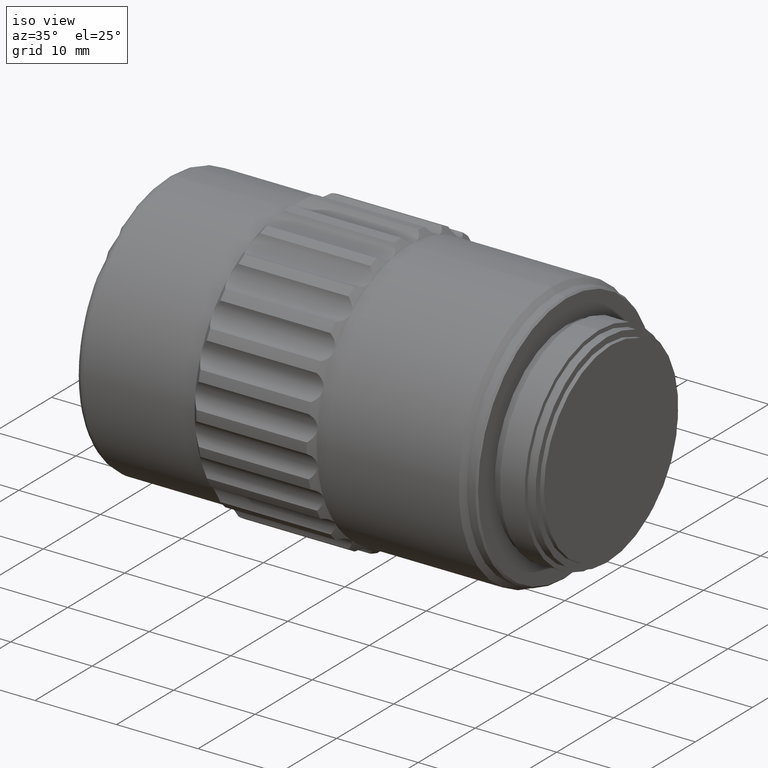
[diagram: clean part render]
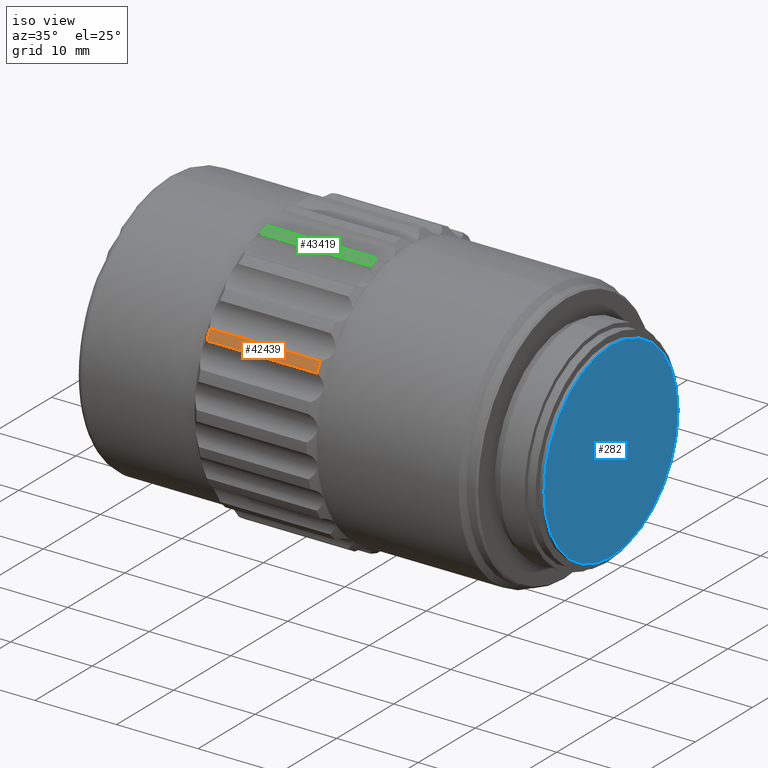
[diagram: same view with three faces highlighted in distinct colors, each labeled with its STEP entity id]
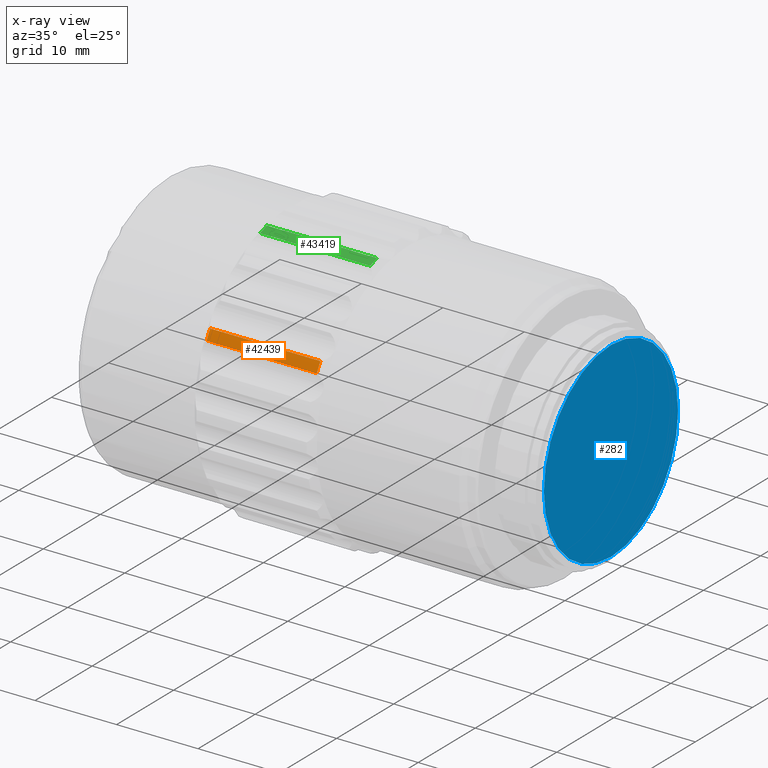
[diagram: x-ray of the same camera — body ghosted, the three highlighted faces saturated]
A machine part, iso view with three faces highlighted in distinct colors.
The next image is the same camera in x-ray (body ghosted, the three faces saturated) — at least one of them is partly hidden behind the body in this view.
Their STEP definitions:

[orange] entity #42439 — the highlighted cylindrical surface (partial cylindrical patch) has radius 17 mm, axis along (-1, -0, -0).
#819 = ORIENTED_EDGE ( 'NONE', *, *, #8790, .F. ) ;
#1533 = DIRECTION ( 'NONE',  ( 0.000000000000000000, 0.000000000000000000, -1.000000000000000000 ) ) ;
#1699 = AXIS2_PLACEMENT_3D ( 'NONE', #9377, #2516, #7076 ) ;
#2087 = VECTOR ( 'NONE', #20817, 1000.000000000000000 ) ;
#2516 = DIRECTION ( 'NONE',  ( -1.000000000000000000, -0.000000000000000000, -0.000000000000000000 ) ) ;
#2945 = EDGE_CURVE ( 'NONE', #27799, #29002, #10831, .T. ) ;
#4970 = CARTESIAN_POINT ( 'NONE',  ( 16.69999999999998508, 0.000000000000000000, 0.000000000000000000 ) ) ;
#7076 = DIRECTION ( 'NONE',  ( 0.000000000000000000, 0.000000000000000000, 1.000000000000000000 ) ) ;
#8182 = DIRECTION ( 'NONE',  ( 1.000000000000000000, 0.000000000000000000, 0.000000000000000000 ) ) ;
#8790 = EDGE_CURVE ( 'NONE', #27799, #21232, #14422, .T. ) ;
#9377 = CARTESIAN_POINT ( 'NONE',  ( 30.20000000000000284, 0.000000000000000000, 0.000000000000000000 ) ) ;
#9441 = EDGE_CURVE ( 'NONE', #42272, #29002, #44749, .T. ) ;
#10063 = DIRECTION ( 'NONE',  ( -1.000000000000000000, -0.000000000000000000, -0.000000000000000000 ) ) ;
#10515 = CARTESIAN_POINT ( 'NONE',  ( 0.000000000000000000, 0.000000000000000000, 0.000000000000000000 ) ) ;
#10831 = CIRCLE ( 'NONE', #11553, 17.00000000000000000 ) ;
#11553 = AXIS2_PLACEMENT_3D ( 'NONE', #4970, #8182, #1533 ) ;
#12453 = EDGE_LOOP ( 'NONE', ( #26509, #819, #12920, #17789 ) ) ;
#12920 = ORIENTED_EDGE ( 'NONE', *, *, #2945, .T. ) ;
#14422 = LINE ( 'NONE', #28344, #2087 ) ;
#16915 = CYLINDRICAL_SURFACE ( 'NONE', #41790, 17.00000000000000000 ) ;
#17789 = ORIENTED_EDGE ( 'NONE', *, *, #9441, .F. ) ;
#20768 = CARTESIAN_POINT ( 'NONE',  ( 16.69999999999998508, -14.58408649700090542, 8.735240182616383464 ) ) ;
#20817 = DIRECTION ( 'NONE',  ( 1.000000000000000000, 0.000000000000000000, 0.000000000000000000 ) ) ;
#21232 = VERTEX_POINT ( 'NONE', #21358 ) ;
#21358 = CARTESIAN_POINT ( 'NONE',  ( 30.20000000000000284, -14.58408649700090542, 8.735240182616383464 ) ) ;
#26509 = ORIENTED_EDGE ( 'NONE', *, *, #41818, .T. ) ;
#27178 = DIRECTION ( 'NONE',  ( -1.000000000000000000, -0.000000000000000000, -0.000000000000000000 ) ) ;
#27799 = VERTEX_POINT ( 'NONE', #20768 ) ;
#28344 = CARTESIAN_POINT ( 'NONE',  ( 23.44999999999999574, -14.58408649700090542, 8.735240182616383464 ) ) ;
#29002 = VERTEX_POINT ( 'NONE', #37753 ) ;
#34265 = DIRECTION ( 'NONE',  ( 0.000000000000000000, 0.000000000000000000, 1.000000000000000000 ) ) ;
#34488 = CARTESIAN_POINT ( 'NONE',  ( 23.44999999999999574, -15.18995154753260834, 7.633175746935989991 ) ) ;
#37753 = CARTESIAN_POINT ( 'NONE',  ( 16.69999999999998508, -15.18995154753260657, 7.633175746935989103 ) ) ;
#40951 = CARTESIAN_POINT ( 'NONE',  ( 30.20000000000000284, -15.18995154753260834, 7.633175746935989991 ) ) ;
#41120 = FACE_OUTER_BOUND ( 'NONE', #12453, .T. ) ;
#41790 = AXIS2_PLACEMENT_3D ( 'NONE', #10515, #10063, #34265 ) ;
#41818 = EDGE_CURVE ( 'NONE', #42272, #21232, #43250, .T. ) ;
#42272 = VERTEX_POINT ( 'NONE', #40951 ) ;
#42439 = ADVANCED_FACE ( 'NONE', ( #41120 ), #16915, .T. ) ;
#43250 = CIRCLE ( 'NONE', #1699, 17.00000000000000000 ) ;
#44749 = LINE ( 'NONE', #34488, #45108 ) ;
#45108 = VECTOR ( 'NONE', #27178, 1000.000000000000000 ) ;

[blue] entity #282 — the highlighted planar face has unit normal (-1, 0, -0).
#282 = ADVANCED_FACE ( 'NONE', ( #4996 ), #19357, .F. ) ;
#1172 = VERTEX_POINT ( 'NONE', #35107 ) ;
#1308 = DIRECTION ( 'NONE',  ( -1.000000000000000000, -0.000000000000000000, -0.000000000000000000 ) ) ;
#2736 = EDGE_CURVE ( 'NONE', #15842, #1172, #7181, .T. ) ;
#2786 = EDGE_CURVE ( 'NONE', #1172, #15842, #5708, .T. ) ;
#4854 = EDGE_LOOP ( 'NONE', ( #16316, #11548 ) ) ;
#4996 = FACE_OUTER_BOUND ( 'NONE', #4854, .T. ) ;
#5708 = CIRCLE ( 'NONE', #37801, 11.75000000000000000 ) ;
#7181 = CIRCLE ( 'NONE', #21749, 11.75000000000000000 ) ;
#7500 = CARTESIAN_POINT ( 'NONE',  ( 55.65000000000000568, 0.000000000000000000, 0.000000000000000000 ) ) ;
#7729 = CARTESIAN_POINT ( 'NONE',  ( 55.65000000000000568, 0.000000000000000000, 0.000000000000000000 ) ) ;
#9560 = CARTESIAN_POINT ( 'NONE',  ( 55.65000000000000568, 0.000000000000000000, 11.75000000000000000 ) ) ;
#10021 = DIRECTION ( 'NONE',  ( 0.000000000000000000, 0.000000000000000000, 1.000000000000000000 ) ) ;
#11548 = ORIENTED_EDGE ( 'NONE', *, *, #2786, .F. ) ;
#15842 = VERTEX_POINT ( 'NONE', #9560 ) ;
#16316 = ORIENTED_EDGE ( 'NONE', *, *, #2736, .F. ) ;
#19357 = PLANE ( 'NONE',  #30483 ) ;
#21749 = AXIS2_PLACEMENT_3D ( 'NONE', #7500, #41304, #10021 ) ;
#22564 = DIRECTION ( 'NONE',  ( -0.000000000000000000, 0.000000000000000000, 1.000000000000000000 ) ) ;
#25516 = DIRECTION ( 'NONE',  ( 0.000000000000000000, 0.000000000000000000, 1.000000000000000000 ) ) ;
#29632 = DIRECTION ( 'NONE',  ( -1.000000000000000000, 0.000000000000000000, -0.000000000000000000 ) ) ;
#30483 = AXIS2_PLACEMENT_3D ( 'NONE', #39709, #29632, #22564 ) ;
#35107 = CARTESIAN_POINT ( 'NONE',  ( 55.65000000000000568, 1.438959988998140160E-15, -11.75000000000000000 ) ) ;
#37801 = AXIS2_PLACEMENT_3D ( 'NONE', #7729, #1308, #25516 ) ;
#39709 = CARTESIAN_POINT ( 'NONE',  ( 55.65000000000000568, 11.75000000000000000, 0.000000000000000000 ) ) ;
#41304 = DIRECTION ( 'NONE',  ( -1.000000000000000000, -0.000000000000000000, -0.000000000000000000 ) ) ;

[green] entity #43419 — the highlighted cylindrical surface (partial cylindrical patch) has radius 17 mm, axis along (-1, -0, -0).
#70 = CIRCLE ( 'NONE', #27049, 17.00000000000000000 ) ;
#2335 = EDGE_LOOP ( 'NONE', ( #31092, #21640, #27609, #45045 ) ) ;
#3247 = VERTEX_POINT ( 'NONE', #10422 ) ;
#4244 = CYLINDRICAL_SURFACE ( 'NONE', #32456, 17.00000000000000000 ) ;
#4950 = DIRECTION ( 'NONE',  ( -1.000000000000000000, -0.000000000000000000, -0.000000000000000000 ) ) ;
#6510 = DIRECTION ( 'NONE',  ( -1.000000000000000000, -0.000000000000000000, -0.000000000000000000 ) ) ;
#6938 = VECTOR ( 'NONE', #36525, 1000.000000000000000 ) ;
#7451 = FACE_OUTER_BOUND ( 'NONE', #2335, .T. ) ;
#10324 = EDGE_CURVE ( 'NONE', #3247, #43645, #22292, .T. ) ;
#10377 = CIRCLE ( 'NONE', #41725, 17.00000000000000000 ) ;
#10422 = CARTESIAN_POINT ( 'NONE',  ( 30.20000000000000284, -5.847729763593631169, 15.96258301817037406 ) ) ;
#11994 = CARTESIAN_POINT ( 'NONE',  ( 16.69999999999998508, -5.847729763593631169, 15.96258301817037406 ) ) ;
#13133 = DIRECTION ( 'NONE',  ( 0.000000000000000000, 0.000000000000000000, 1.000000000000000000 ) ) ;
#17035 = DIRECTION ( 'NONE',  ( 0.000000000000000000, 0.000000000000000000, -1.000000000000000000 ) ) ;
#17711 = CARTESIAN_POINT ( 'NONE',  ( 16.69999999999998508, 0.000000000000000000, 0.000000000000000000 ) ) ;
#19643 = CARTESIAN_POINT ( 'NONE',  ( 16.69999999999998508, -4.651658129312188805, 16.35121025025376795 ) ) ;
#20423 = CARTESIAN_POINT ( 'NONE',  ( 30.20000000000000284, 0.000000000000000000, 0.000000000000000000 ) ) ;
#20906 = DIRECTION ( 'NONE',  ( 0.000000000000000000, 0.000000000000000000, 1.000000000000000000 ) ) ;
#21640 = ORIENTED_EDGE ( 'NONE', *, *, #42914, .F. ) ;
#21774 = VECTOR ( 'NONE', #4950, 1000.000000000000000 ) ;
#22292 = LINE ( 'NONE', #36235, #21774 ) ;
#25118 = EDGE_CURVE ( 'NONE', #35178, #43645, #70, .T. ) ;
#25560 = LINE ( 'NONE', #40167, #6938 ) ;
#27049 = AXIS2_PLACEMENT_3D ( 'NONE', #17711, #27978, #17035 ) ;
#27609 = ORIENTED_EDGE ( 'NONE', *, *, #25118, .T. ) ;
#27978 = DIRECTION ( 'NONE',  ( 1.000000000000000000, 0.000000000000000000, 0.000000000000000000 ) ) ;
#31092 = ORIENTED_EDGE ( 'NONE', *, *, #33739, .T. ) ;
#31825 = CARTESIAN_POINT ( 'NONE',  ( 30.20000000000000284, -4.651658129312188805, 16.35121025025376795 ) ) ;
#32100 = DIRECTION ( 'NONE',  ( -1.000000000000000000, -0.000000000000000000, -0.000000000000000000 ) ) ;
#32456 = AXIS2_PLACEMENT_3D ( 'NONE', #35080, #32100, #20906 ) ;
#33739 = EDGE_CURVE ( 'NONE', #3247, #40368, #10377, .T. ) ;
#35080 = CARTESIAN_POINT ( 'NONE',  ( 0.000000000000000000, 0.000000000000000000, 0.000000000000000000 ) ) ;
#35178 = VERTEX_POINT ( 'NONE', #19643 ) ;
#36235 = CARTESIAN_POINT ( 'NONE',  ( 23.44999999999999574, -5.847729763593631169, 15.96258301817037406 ) ) ;
#36525 = DIRECTION ( 'NONE',  ( 1.000000000000000000, 0.000000000000000000, 0.000000000000000000 ) ) ;
#40167 = CARTESIAN_POINT ( 'NONE',  ( 23.44999999999999574, -4.651658129312188805, 16.35121025025376795 ) ) ;
#40368 = VERTEX_POINT ( 'NONE', #31825 ) ;
#41725 = AXIS2_PLACEMENT_3D ( 'NONE', #20423, #6510, #13133 ) ;
#42914 = EDGE_CURVE ( 'NONE', #35178, #40368, #25560, .T. ) ;
#43419 = ADVANCED_FACE ( 'NONE', ( #7451 ), #4244, .T. ) ;
#43645 = VERTEX_POINT ( 'NONE', #11994 ) ;
#45045 = ORIENTED_EDGE ( 'NONE', *, *, #10324, .F. ) ;